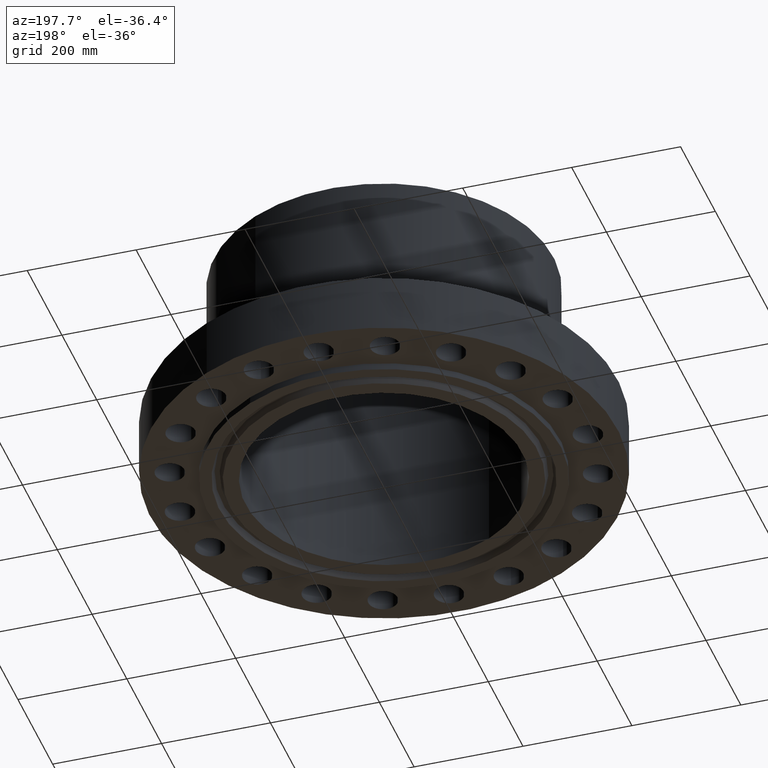
[diagram: clean part render]
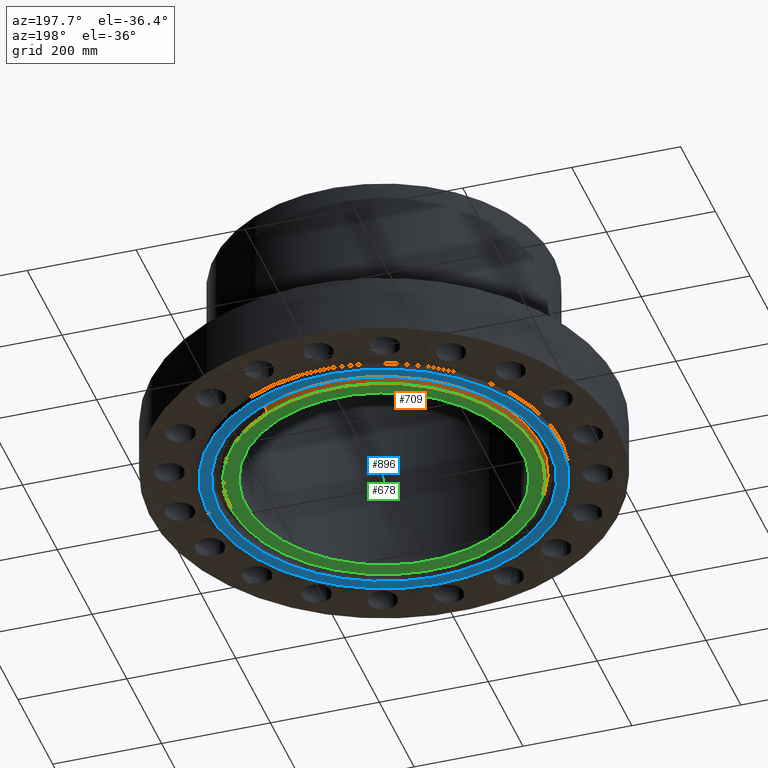
[diagram: same view with three faces highlighted in distinct colors, each labeled with its STEP entity id]
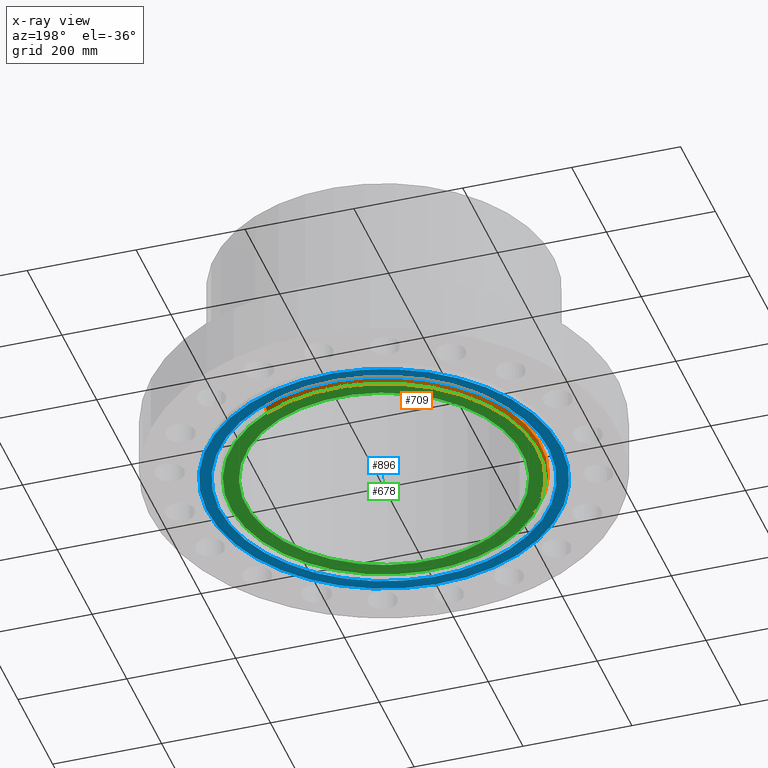
[diagram: x-ray of the same camera — body ghosted, the three highlighted faces saturated]
A machine part, auxiliary view with three faces highlighted in distinct colors.
The next image is the same camera in x-ray (body ghosted, the three faces saturated) — at least one of them is partly hidden behind the body in this view.
Their STEP definitions:

[orange] entity #709 — the highlighted conical surface has half-angle 23 deg.
#658=AXIS2_PLACEMENT_3D('Circle Axis2P3D',#656,#657,$) ;
#682=AXIS2_PLACEMENT_3D('Cone Axis2P3D',#679,#680,#681) ;
#693=AXIS2_PLACEMENT_3D('Circle Axis2P3D',#691,#692,$) ;
#656=CARTESIAN_POINT('Axis2P3D Location',(0.,0.,-0.500000000002)) ;
#660=CARTESIAN_POINT('Vertex',(-5.32617802114,-9.74950347136,-0.500000000002)) ;
#662=CARTESIAN_POINT('Vertex',(5.32617802114,9.74950347136,-0.500000000002)) ;
#679=CARTESIAN_POINT('Axis2P3D Location',(0.,0.,-0.500000000002)) ;
#684=CARTESIAN_POINT('Line Origine',(-5.37314839415,-9.83548216242,-0.269191969454)) ;
#688=CARTESIAN_POINT('Vertex',(-5.42011876715,-9.92146085349,-0.0383839389053)) ;
#691=CARTESIAN_POINT('Axis2P3D Location',(0.,0.,-0.0383839389053)) ;
#695=CARTESIAN_POINT('Vertex',(5.42011876715,9.92146085349,-0.0383839389053)) ;
#698=CARTESIAN_POINT('Line Origine',(5.37314839415,9.83548216242,-0.269191969454)) ;
#657=DIRECTION('Axis2P3D Direction',(0.,0.,-0.0393700787402)) ;
#680=DIRECTION('Axis2P3D Direction',(-0.,-0.,0.0393700787402)) ;
#681=DIRECTION('Axis2P3D XDirection',(-0.0188750212049,-0.0345504945626,0.)) ;
#685=DIRECTION('Vector Direction',(-0.00737505833565,-0.0134999537303,0.0362403485611)) ;
#692=DIRECTION('Axis2P3D Direction',(-0.,0.,0.0393700787402)) ;
#699=DIRECTION('Vector Direction',(0.00737505833565,0.0134999537303,0.0362403485611)) ;
#686=VECTOR('Line Direction',#685,0.0393700787402) ;
#700=VECTOR('Line Direction',#699,0.0393700787402) ;
#704=ORIENTED_EDGE('',*,*,#664,.F.) ;
#705=ORIENTED_EDGE('',*,*,#690,.T.) ;
#706=ORIENTED_EDGE('',*,*,#697,.T.) ;
#707=ORIENTED_EDGE('',*,*,#702,.F.) ;
#709=ADVANCED_FACE('PartBody',(#708),#683,.T.) ;
#659=CIRCLE('generated circle',#658,11.1095) ;
#694=CIRCLE('generated circle',#693,11.3054443927) ;
#683=CONICAL_SURFACE('Cone',#682,11.1095,0.401425727959) ;
#664=EDGE_CURVE('',#661,#663,#659,.T.) ;
#690=EDGE_CURVE('',#661,#689,#687,.T.) ;
#697=EDGE_CURVE('',#689,#696,#694,.F.) ;
#702=EDGE_CURVE('',#663,#696,#701,.T.) ;
#703=EDGE_LOOP('',(#704,#705,#706,#707)) ;
#708=FACE_OUTER_BOUND('',#703,.T.) ;
#687=LINE('Line',#684,#686) ;
#701=LINE('Line',#698,#700) ;
#661=VERTEX_POINT('',#660) ;
#663=VERTEX_POINT('',#662) ;
#689=VERTEX_POINT('',#688) ;
#696=VERTEX_POINT('',#695) ;

[blue] entity #896 — the highlighted planar face has unit normal (0, 0, -1).
#654=AXIS2_PLACEMENT_3D('Plane Axis2P3D',#651,#652,#653) ;
#845=AXIS2_PLACEMENT_3D('Circle Axis2P3D',#843,#844,$) ;
#864=AXIS2_PLACEMENT_3D('Circle Axis2P3D',#862,#863,$) ;
#876=AXIS2_PLACEMENT_3D('Circle Axis2P3D',#874,#875,$) ;
#885=AXIS2_PLACEMENT_3D('Circle Axis2P3D',#883,#884,$) ;
#651=CARTESIAN_POINT('Axis2P3D Location',(0.,10.,-0.500000000002)) ;
#840=CARTESIAN_POINT('Vertex',(-5.7006093668,-10.4348954522,-0.500000000002)) ;
#843=CARTESIAN_POINT('Axis2P3D Location',(0.,0.,-0.500000000002)) ;
#847=CARTESIAN_POINT('Vertex',(5.7006093668,10.4348954522,-0.500000000002)) ;
#862=CARTESIAN_POINT('Axis2P3D Location',(0.,0.,-0.500000000002)) ;
#874=CARTESIAN_POINT('Axis2P3D Location',(0.,0.,-0.500000000002)) ;
#878=CARTESIAN_POINT('Vertex',(-6.11267561723,-11.1891776641,-0.500000000002)) ;
#880=CARTESIAN_POINT('Vertex',(6.11267561723,11.1891776641,-0.500000000002)) ;
#883=CARTESIAN_POINT('Axis2P3D Location',(0.,0.,-0.500000000002)) ;
#652=DIRECTION('Axis2P3D Direction',(0.,0.,-0.0393700787402)) ;
#653=DIRECTION('Axis2P3D XDirection',(0.0393700787402,0.,0.)) ;
#844=DIRECTION('Axis2P3D Direction',(0.,0.,-0.0393700787402)) ;
#863=DIRECTION('Axis2P3D Direction',(0.,0.,-0.0393700787402)) ;
#875=DIRECTION('Axis2P3D Direction',(0.,0.,-0.0393700787402)) ;
#884=DIRECTION('Axis2P3D Direction',(0.,0.,-0.0393700787402)) ;
#889=ORIENTED_EDGE('',*,*,#882,.T.) ;
#890=ORIENTED_EDGE('',*,*,#887,.T.) ;
#893=ORIENTED_EDGE('',*,*,#866,.F.) ;
#894=ORIENTED_EDGE('',*,*,#849,.F.) ;
#895=FACE_BOUND('',#892,.T.) ;
#896=ADVANCED_FACE('PartBody',(#891,#895),#655,.T.) ;
#846=CIRCLE('generated circle',#845,11.8905) ;
#865=CIRCLE('generated circle',#864,11.8905) ;
#877=CIRCLE('generated circle',#876,12.7500000001) ;
#886=CIRCLE('generated circle',#885,12.7500000001) ;
#849=EDGE_CURVE('',#841,#848,#846,.T.) ;
#866=EDGE_CURVE('',#848,#841,#865,.T.) ;
#882=EDGE_CURVE('',#879,#881,#877,.T.) ;
#887=EDGE_CURVE('',#881,#879,#886,.T.) ;
#888=EDGE_LOOP('',(#889,#890)) ;
#892=EDGE_LOOP('',(#893,#894)) ;
#891=FACE_OUTER_BOUND('',#888,.T.) ;
#655=PLANE('',#654) ;
#841=VERTEX_POINT('',#840) ;
#848=VERTEX_POINT('',#847) ;
#879=VERTEX_POINT('',#878) ;
#881=VERTEX_POINT('',#880) ;

[green] entity #678 — the highlighted planar face has unit normal (0, 0, -1).
#622=AXIS2_PLACEMENT_3D('Circle Axis2P3D',#620,#621,$) ;
#641=AXIS2_PLACEMENT_3D('Circle Axis2P3D',#639,#640,$) ;
#654=AXIS2_PLACEMENT_3D('Plane Axis2P3D',#651,#652,#653) ;
#658=AXIS2_PLACEMENT_3D('Circle Axis2P3D',#656,#657,$) ;
#667=AXIS2_PLACEMENT_3D('Circle Axis2P3D',#665,#666,$) ;
#617=CARTESIAN_POINT('Vertex',(4.79425538606,8.77582561894,-0.500000000002)) ;
#620=CARTESIAN_POINT('Axis2P3D Location',(0.,0.,-0.500000000002)) ;
#624=CARTESIAN_POINT('Vertex',(-4.79425538606,-8.77582561894,-0.500000000002)) ;
#639=CARTESIAN_POINT('Axis2P3D Location',(0.,0.,-0.500000000002)) ;
#651=CARTESIAN_POINT('Axis2P3D Location',(0.,10.,-0.500000000002)) ;
#656=CARTESIAN_POINT('Axis2P3D Location',(0.,0.,-0.500000000002)) ;
#660=CARTESIAN_POINT('Vertex',(-5.32617802114,-9.74950347136,-0.500000000002)) ;
#662=CARTESIAN_POINT('Vertex',(5.32617802114,9.74950347136,-0.500000000002)) ;
#665=CARTESIAN_POINT('Axis2P3D Location',(0.,0.,-0.500000000002)) ;
#621=DIRECTION('Axis2P3D Direction',(0.,0.,-0.0393700787402)) ;
#640=DIRECTION('Axis2P3D Direction',(0.,0.,-0.0393700787402)) ;
#652=DIRECTION('Axis2P3D Direction',(0.,0.,-0.0393700787402)) ;
#653=DIRECTION('Axis2P3D XDirection',(0.0393700787402,0.,0.)) ;
#657=DIRECTION('Axis2P3D Direction',(0.,0.,-0.0393700787402)) ;
#666=DIRECTION('Axis2P3D Direction',(0.,0.,-0.0393700787402)) ;
#671=ORIENTED_EDGE('',*,*,#664,.T.) ;
#672=ORIENTED_EDGE('',*,*,#669,.T.) ;
#675=ORIENTED_EDGE('',*,*,#626,.F.) ;
#676=ORIENTED_EDGE('',*,*,#643,.F.) ;
#677=FACE_BOUND('',#674,.T.) ;
#678=ADVANCED_FACE('PartBody',(#673,#677),#655,.T.) ;
#623=CIRCLE('generated circle',#622,10.) ;
#642=CIRCLE('generated circle',#641,10.) ;
#659=CIRCLE('generated circle',#658,11.1095) ;
#668=CIRCLE('generated circle',#667,11.1095) ;
#626=EDGE_CURVE('',#618,#625,#623,.T.) ;
#643=EDGE_CURVE('',#625,#618,#642,.T.) ;
#664=EDGE_CURVE('',#661,#663,#659,.T.) ;
#669=EDGE_CURVE('',#663,#661,#668,.T.) ;
#670=EDGE_LOOP('',(#671,#672)) ;
#674=EDGE_LOOP('',(#675,#676)) ;
#673=FACE_OUTER_BOUND('',#670,.T.) ;
#655=PLANE('',#654) ;
#618=VERTEX_POINT('',#617) ;
#625=VERTEX_POINT('',#624) ;
#661=VERTEX_POINT('',#660) ;
#663=VERTEX_POINT('',#662) ;